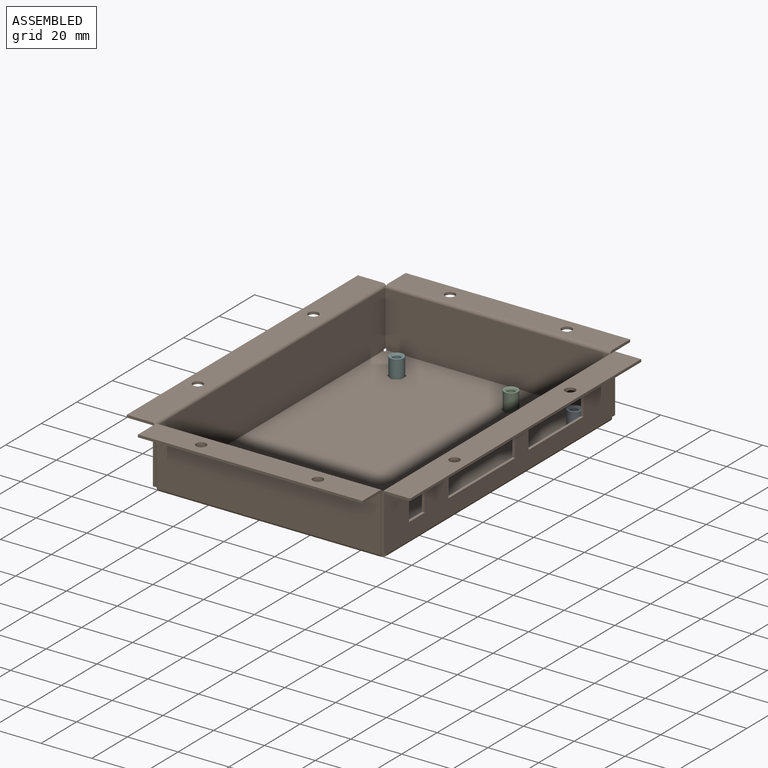
[diagram: assembled view]
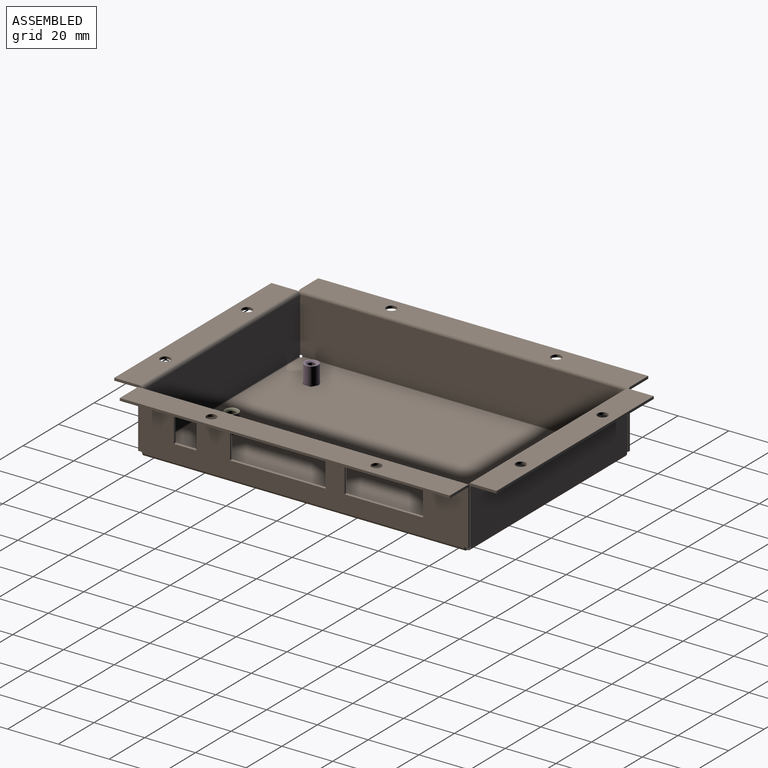
[diagram: assembled view, second angle]
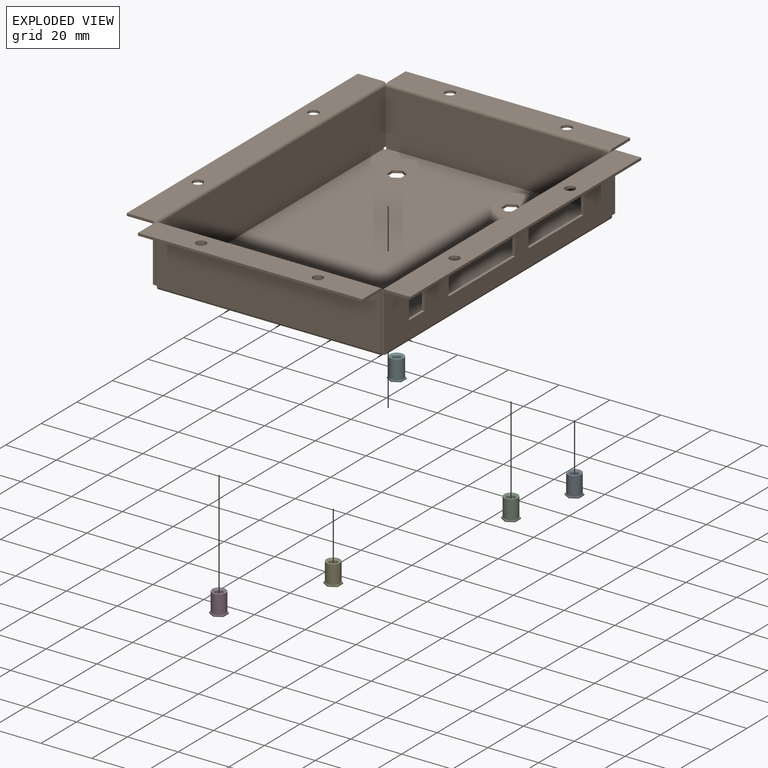
[diagram: exploded view]
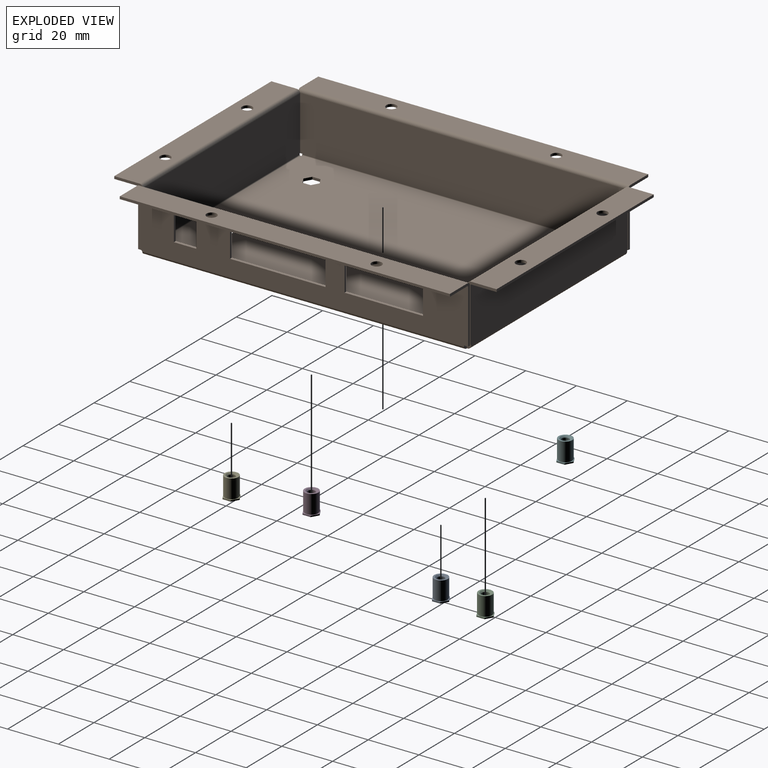
[diagram: exploded view, second angle]
ASSEMBLY  parts=6 mates=5
PART A: 15 faces, bbox 5.5x6.4x8 mm
  f0: plane 2.77x1.6mm, normal (0.5,-0.87,0), area 1.6mm2, adj f1,f5,f6,f7
  f1: plane 3.2x0.5mm, normal (1,0,0), area 1.6mm2, adj f0,f2,f6,f7
  f2: plane 2.77x1.6mm, normal (0.5,0.87,0), area 1.6mm2, adj f1,f3,f6,f7
  f3: plane 2.77x1.6mm, normal (-0.5,0.87,0), area 1.6mm2, adj f2,f4,f6,f7
  f4: plane 3.2x0.5mm, normal (-1,0,0), area 1.6mm2, adj f3,f5,f6,f7
  f5: plane 2.77x1.6mm, normal (-0.5,-0.87,0), area 1.6mm2, adj f0,f4,f6,f7
  f6: plane 6.4x5.54mm, normal (0,0,1), area 7mm2, adj f0,f1,f2,f3,f4,f5,f8
  f7: plane 6.4x5.54mm, normal (0,0,-1), area 26.6mm2, adj f0,f1,f2,f3,f4,f5
  f8: cylinder r=2.5mm len=5mm, axis (0,0,-1), area 4.7mm2, adj f6,f11
  f9: cylinder r=2.69mm len=7.2mm, axis (0,0,-1), area 121.9mm2, adj f10,f11
  f10: plane 5.39x5.39mm, normal (0,0,1), area 10.3mm2, adj f9,f14
  f11: plane 5.39x5.39mm, normal (0,0,-1), area 3.2mm2, adj f8,f9
  f12: cone r=0mm half-angle=59deg, axis (0,0,1), area 8.2mm2, adj f13
  f13: cylinder r=1.5mm len=4.9mm, axis (0,0,1), area 46.2mm2, adj f12,f14
  f14: cone r=1.5mm half-angle=45deg, axis (0,0,1), area 7.8mm2, adj f10,f13
PART B: 144 faces, bbox 111.6x150.6x24.3 mm
  f0: plane 127.4x88.4mm, normal (0,0,1), area 11128.8mm2, adj f2,f3,f4,f5,f6,f7,f8,f9
  f1: plane 127.4x88.4mm, normal (0,0,-1), area 11128.8mm2, adj f2,f3,f4,f5,f6,f7,f8,f9
  f2: plane 3.2x1mm, normal (-1,0,0), area 3.2mm2, adj f0,f1,f3,f31
  f3: plane 2.77x1.6mm, normal (-0.5,0.87,0), area 3.2mm2, adj f0,f1,f2,f4
  f4: plane 2.77x1.6mm, normal (0.5,0.87,0), area 3.2mm2, adj f0,f1,f3,f5
  f5: plane 3.2x1mm, normal (1,0,0), area 3.2mm2, adj f0,f1,f4,f6
  f6: plane 2.77x1.6mm, normal (0.5,-0.87,0), area 3.2mm2, adj f0,f1,f5,f31
  f7: plane 3.2x1mm, normal (-1,0,0), area 3.2mm2, adj f0,f1,f8,f30
  f8: plane 2.77x1.6mm, normal (-0.5,0.87,0), area 3.2mm2, adj f0,f1,f7,f9
  f9: plane 2.77x1.6mm, normal (0.5,0.87,0), area 3.2mm2, adj f0,f1,f8,f10
  f10: plane 3.2x1mm, normal (1,0,0), area 3.2mm2, adj f0,f1,f9,f11
  f11: plane 2.77x1.6mm, normal (0.5,-0.87,0), area 3.2mm2, adj f0,f1,f10,f30
  f12: plane 3.2x1mm, normal (1,0,0), area 3.2mm2, adj f0,f1,f13,f29
  f13: plane 2.77x1.6mm, normal (0.5,-0.87,0), area 3.2mm2, adj f0,f1,f12,f14
  f14: plane 2.77x1.6mm, normal (-0.5,-0.87,0), area 3.2mm2, adj f0,f1,f13,f15
  f15: plane 3.2x1mm, normal (-1,0,0), area 3.2mm2, adj f0,f1,f14,f16
  f16: plane 2.77x1.6mm, normal (-0.5,0.87,0), area 3.2mm2, adj f0,f1,f15,f29
  f17: plane 2.77x1.6mm, normal (0.5,0.87,0), area 3.2mm2, adj f0,f1,f18,f28
  f18: plane 3.2x1mm, normal (1,0,0), area 3.2mm2, adj f0,f1,f17,f19
  f19: plane 2.77x1.6mm, normal (0.5,-0.87,0), area 3.2mm2, adj f0,f1,f18,f20
  f20: plane 2.77x1.6mm, normal (-0.5,-0.87,0), area 3.2mm2, adj f0,f1,f19,f21
  f21: plane 3.2x1mm, normal (-1,0,0), area 3.2mm2, adj f0,f1,f20,f28
  f22: plane 2.77x1.6mm, normal (-0.5,-0.87,0), area 3.2mm2, adj f0,f1,f23,f27
  f23: plane 3.2x1mm, normal (-1,0,0), area 3.2mm2, adj f0,f1,f22,f24
  f24: plane 2.77x1.6mm, normal (-0.5,0.87,0), area 3.2mm2, adj f0,f1,f23,f25
  f25: plane 2.77x1.6mm, normal (0.5,0.87,0), area 3.2mm2, adj f0,f1,f24,f26
  f26: plane 3.2x1mm, normal (1,0,0), area 3.2mm2, adj f0,f1,f25,f27
  f27: plane 2.77x1.6mm, normal (0.5,-0.87,0), area 3.2mm2, adj f0,f1,f22,f26
  f28: plane 2.77x1.6mm, normal (-0.5,0.87,0), area 3.2mm2, adj f0,f1,f17,f21
  f29: plane 2.77x1.6mm, normal (0.5,0.87,0), area 3.2mm2, adj f0,f1,f12,f16
  f30: plane 2.77x1.6mm, normal (-0.5,-0.87,0), area 3.2mm2, adj f0,f1,f7,f11
  f31: plane 2.77x1.6mm, normal (-0.5,-0.87,0), area 3.2mm2, adj f0,f1,f2,f6
  f32: plane 1x0.29mm, normal (0,1,0), area 0.3mm2, adj f0,f1,f33,f71
  f33: plane 1x0.33mm, normal (1,0,0), area 0.3mm2, adj f0,f1,f32,f141
  f34: plane 1x0.33mm, normal (-1,0,0), area 0.3mm2, adj f0,f1,f35,f140
  f35: plane 1x0.29mm, normal (0,1,0), area 0.3mm2, adj f0,f1,f34,f94
  f36: plane 1x0.29mm, normal (0,-1,0), area 0.3mm2, adj f0,f1,f37,f95
  f37: plane 1x0.33mm, normal (-1,0,0), area 0.3mm2, adj f0,f1,f36,f118
  f38: plane 1x0.33mm, normal (1,0,0), area 0.3mm2, adj f0,f1,f39,f117
  f39: plane 1x0.29mm, normal (0,-1,0), area 0.3mm2, adj f0,f1,f38,f72
  f40: plane 21.41x1mm, normal (0,1,0), area 21.4mm2, adj f42,f43,f59,f68
  f41: plane 21.41x1mm, normal (0,-1,0), area 21.4mm2, adj f42,f43,f56,f67
  f42: plane 130x21.7mm, normal (-1,0,0), area 1974mm2, adj f40,f41,f44,f45,f46,f47,f48,f49
  f43: plane 130x21.7mm, normal (1,0,0), area 1974mm2, adj f40,f41,f44,f45,f46,f47,f48,f49
  f44: plane 10.8x1mm, normal (0,-1,0), area 10.8mm2, adj f42,f43,f45,f55
  f45: plane 8.8x1mm, normal (0,0,-1), area 8.8mm2, adj f42,f43,f44,f46
  f46: plane 10.8x1mm, normal (0,1,0), area 10.8mm2, adj f42,f43,f45,f55
  f47: plane 9.7x1mm, normal (0,1,0), area 9.7mm2, adj f42,f43,f48,f54
  f48: plane 37.6x1mm, normal (0,0,1), area 37.6mm2, adj f42,f43,f47,f49
  f49: plane 9.7x1mm, normal (0,-1,0), area 9.7mm2, adj f42,f43,f48,f54
  f50: plane 12.5x1mm, normal (0,1,0), area 12.5mm2, adj f42,f43,f51,f53
  f51: plane 30.9x1mm, normal (0,0,1), area 30.9mm2, adj f42,f43,f50,f52
  f52: plane 12.5x1mm, normal (0,-1,0), area 12.5mm2, adj f42,f43,f51,f53
  f53: plane 30.9x1mm, normal (0,0,-1), area 30.9mm2, adj f42,f43,f50,f52
  f54: plane 37.6x1mm, normal (0,0,-1), area 37.6mm2, adj f42,f43,f47,f49
  f55: plane 8.8x1mm, normal (0,0,1), area 8.8mm2, adj f42,f43,f44,f46
  f56: plane 1.63x1mm, normal (0,0,-1), area 1.6mm2, adj f41,f42,f43,f57
  f57: plane 1x0.29mm, normal (0,-1,0), area 0.3mm2, adj f42,f43,f56,f72
  f58: plane 1x0.29mm, normal (0,1,0), area 0.3mm2, adj f42,f43,f59,f71
  f59: plane 1.63x1mm, normal (0,0,-1), area 1.6mm2, adj f40,f42,f43,f58
  f60: plane 10x1mm, normal (0,1,0), area 10mm2, adj f64,f65,f66,f68
  f61: plane 10x1mm, normal (0,-1,0), area 10mm2, adj f64,f65,f66,f67
  f62: cylinder r=2mm len=4mm, axis (0,0,1), area 12.6mm2, adj f65,f66
  f63: cylinder r=2mm len=4mm, axis (0,0,1), area 12.6mm2, adj f65,f66
  f64: plane 130x1mm, normal (1,0,0), area 130mm2, adj f60,f61,f65,f66
  f65: plane 130x10mm, normal (0,0,1), area 1274.9mm2, adj f60,f61,f62,f63,f64,f69
  f66: plane 130x10mm, normal (0,0,-1), area 1274.9mm2, adj f60,f61,f62,f63,f64,f70
  f67: plane 1.3x1.3mm, normal (0,-1,0), area 1.3mm2, adj f41,f61,f69,f70
  f68: plane 1.3x1.3mm, normal (0,1,0), area 1.3mm2, adj f40,f60,f69,f70
  f69: cylinder r=1.3mm len=130mm, axis (0,-1,0), area 265.5mm2, adj f42,f65,f67,f68
  f70: cylinder r=0.3mm len=130mm, axis (0,-1,0), area 61.3mm2, adj f43,f66,f67,f68
  f71: plane 1.3x1.3mm, normal (0,1,0), area 1.3mm2, adj f32,f58,f73,f74
  f72: plane 1.3x1.3mm, normal (0,-1,0), area 1.3mm2, adj f39,f57,f73,f74
  f73: cylinder r=1.3mm len=126.75mm, axis (0,1,0), area 258.8mm2, adj f1,f43,f71,f72
  f74: cylinder r=0.3mm len=126.75mm, axis (0,1,0), area 59.7mm2, adj f0,f42,f71,f72
  f75: plane 21.41x1mm, normal (0,1,0), area 21.4mm2, adj f77,f78,f79,f91
  f76: plane 21.41x1mm, normal (0,-1,0), area 21.4mm2, adj f77,f78,f82,f90
  f77: plane 130x21.7mm, normal (1,0,0), area 2820mm2, adj f75,f76,f79,f80,f81,f82,f92,f97
  f78: plane 130x21.7mm, normal (-1,0,0), area 2820mm2, adj f75,f76,f79,f80,f81,f82,f93,f96
  f79: plane 1.63x1mm, normal (0,0,-1), area 1.6mm2, adj f75,f77,f78,f80
  f80: plane 1x0.29mm, normal (0,1,0), area 0.3mm2, adj f77,f78,f79,f94
  f81: plane 1x0.29mm, normal (0,-1,0), area 0.3mm2, adj f77,f78,f82,f95
  f82: plane 1.63x1mm, normal (0,0,-1), area 1.6mm2, adj f76,f77,f78,f81
  f83: plane 10x1mm, normal (0,-1,0), area 10mm2, adj f87,f88,f89,f90
  f84: plane 10x1mm, normal (0,1,0), area 10mm2, adj f87,f88,f89,f91
  f85: cylinder r=2mm len=4mm, axis (0,0,1), area 12.6mm2, adj f88,f89
  f86: cylinder r=2mm len=4mm, axis (0,0,1), area 12.6mm2, adj f88,f89
  f87: plane 130x1mm, normal (-1,0,0), area 130mm2, adj f83,f84,f88,f89
  f88: plane 130x10mm, normal (0,0,1), area 1274.9mm2, adj f83,f84,f85,f86,f87,f92
  f89: plane 130x10mm, normal (0,0,-1), area 1274.9mm2, adj f83,f84,f85,f86,f87,f93
  f90: plane 1.3x1.3mm, normal (0,-1,0), area 1.3mm2, adj f76,f83,f92,f93
  f91: plane 1.3x1.3mm, normal (0,1,0), area 1.3mm2, adj f75,f84,f92,f93
  f92: cylinder r=1.3mm len=130mm, axis (0,-1,0), area 265.5mm2, adj f77,f88,f90,f91
  f93: cylinder r=0.3mm len=130mm, axis (0,-1,0), area 61.3mm2, adj f78,f89,f90,f91
  f94: plane 1.3x1.3mm, normal (0,1,0), area 1.3mm2, adj f35,f80,f96,f97
  f95: plane 1.3x1.3mm, normal (0,-1,0), area 1.3mm2, adj f36,f81,f96,f97
  f96: cylinder r=1.3mm len=126.75mm, axis (0,1,0), area 258.8mm2, adj f1,f78,f94,f95
  f97: cylinder r=0.3mm len=126.75mm, axis (0,1,0), area 59.7mm2, adj f0,f77,f94,f95
  f98: plane 21.25x1mm, normal (1,0,0), area 21.3mm2, adj f100,f101,f105,f114
  f99: plane 21.25x1mm, normal (-1,0,0), area 21.3mm2, adj f100,f101,f102,f113
  f100: plane 88.4x21.7mm, normal (0,1,0), area 1918mm2, adj f98,f99,f102,f103,f104,f105,f115,f120
  f101: plane 88.4x21.7mm, normal (0,-1,0), area 1918mm2, adj f98,f99,f102,f103,f104,f105,f116,f119
  f102: plane 1x0.29mm, normal (0,0,-1), area 0.3mm2, adj f99,f100,f101,f103
  f103: plane 1x0.45mm, normal (-1,0,0), area 0.4mm2, adj f100,f101,f102,f118
  f104: plane 1x0.45mm, normal (1,0,0), area 0.4mm2, adj f100,f101,f105,f117
  f105: plane 1x0.29mm, normal (0,0,-1), area 0.3mm2, adj f98,f100,f101,f104
  f106: plane 10x1mm, normal (1,0,0), area 10mm2, adj f110,f111,f112,f114
  f107: plane 10x1mm, normal (-1,0,0), area 10mm2, adj f110,f111,f112,f113
  f108: cylinder r=2mm len=4mm, axis (0,0,1), area 12.6mm2, adj f111,f112
  f109: cylinder r=2mm len=4mm, axis (0,0,1), area 12.6mm2, adj f111,f112
  f110: plane 88.4x1mm, normal (0,-1,0), area 88.4mm2, adj f106,f107,f111,f112
  f111: plane 88.4x10mm, normal (0,0,1), area 858.9mm2, adj f106,f107,f108,f109,f110,f115
  f112: plane 88.4x10mm, normal (0,0,-1), area 858.9mm2, adj f106,f107,f108,f109,f110,f116
  f113: plane 1.3x1.3mm, normal (-1,0,0), area 1.3mm2, adj f99,f107,f115,f116
  f114: plane 1.3x1.3mm, normal (1,0,0), area 1.3mm2, adj f98,f106,f115,f116
  f115: cylinder r=1.3mm len=88.4mm, axis (-1,0,0), area 180.5mm2, adj f100,f111,f113,f114
  f116: cylinder r=0.3mm len=88.4mm, axis (-1,0,0), area 41.7mm2, adj f101,f112,f113,f114
  f117: plane 1.3x1.3mm, normal (1,0,0), area 1.3mm2, adj f38,f104,f119,f120
  f118: plane 1.3x1.3mm, normal (-1,0,0), area 1.3mm2, adj f37,f103,f119,f120
  f119: cylinder r=1.3mm len=87.81mm, axis (1,0,0), area 179.3mm2, adj f1,f101,f117,f118
  f120: cylinder r=0.3mm len=87.81mm, axis (1,0,0), area 41.4mm2, adj f0,f100,f117,f118
  f121: plane 21.25x1mm, normal (-1,0,0), area 21.3mm2, adj f123,f124,f128,f137
  f122: plane 21.25x1mm, normal (1,0,0), area 21.3mm2, adj f123,f124,f125,f136
  f123: plane 88.4x21.7mm, normal (0,-1,0), area 1918mm2, adj f121,f122,f125,f126,f127,f128,f138,f143
  f124: plane 88.4x21.7mm, normal (0,1,0), area 1918mm2, adj f121,f122,f125,f126,f127,f128,f139,f142
  f125: plane 1x0.29mm, normal (0,0,-1), area 0.3mm2, adj f122,f123,f124,f126
  f126: plane 1x0.45mm, normal (1,0,0), area 0.4mm2, adj f123,f124,f125,f141
  f127: plane 1x0.45mm, normal (-1,0,0), area 0.4mm2, adj f123,f124,f128,f140
  f128: plane 1x0.29mm, normal (0,0,-1), area 0.3mm2, adj f121,f123,f124,f127
  f129: plane 10x1mm, normal (-1,0,0), area 10mm2, adj f133,f134,f135,f137
  f130: plane 10x1mm, normal (1,0,0), area 10mm2, adj f133,f134,f135,f136
  f131: cylinder r=2mm len=4mm, axis (0,0,1), area 12.6mm2, adj f134,f135
  f132: cylinder r=2mm len=4mm, axis (0,0,1), area 12.6mm2, adj f134,f135
  f133: plane 88.4x1mm, normal (0,1,0), area 88.4mm2, adj f129,f130,f134,f135
  f134: plane 88.4x10mm, normal (0,0,1), area 858.9mm2, adj f129,f130,f131,f132,f133,f138
  f135: plane 88.4x10mm, normal (0,0,-1), area 858.9mm2, adj f129,f130,f131,f132,f133,f139
  f136: plane 1.3x1.3mm, normal (1,0,0), area 1.3mm2, adj f122,f130,f138,f139
  f137: plane 1.3x1.3mm, normal (-1,0,0), area 1.3mm2, adj f121,f129,f138,f139
  f138: cylinder r=1.3mm len=88.4mm, axis (1,0,0), area 180.5mm2, adj f123,f134,f136,f137
  f139: cylinder r=0.3mm len=88.4mm, axis (1,0,0), area 41.7mm2, adj f124,f135,f136,f137
  f140: plane 1.3x1.3mm, normal (-1,0,0), area 1.3mm2, adj f34,f127,f142,f143
  f141: plane 1.3x1.3mm, normal (1,0,0), area 1.3mm2, adj f33,f126,f142,f143
  f142: cylinder r=1.3mm len=87.81mm, axis (-1,0,0), area 179.3mm2, adj f1,f124,f140,f141
  f143: cylinder r=0.3mm len=87.81mm, axis (-1,0,0), area 41.4mm2, adj f0,f123,f140,f141
PART C: same geometry as A
PART D: same geometry as A
PART E: same geometry as A
PART F: same geometry as A
PLACE A t=(43.62,49.21,-17.09)mm
PLACE B t=(3.82,-1.09,-17.09)mm
PLACE C t=(18.62,49.21,-17.09)mm
PLACE D t=(-26.38,-50.79,-17.09)mm
PLACE E t=(18.62,-50.79,-17.09)mm
PLACE F t=(-26.38,49.21,-17.09)mm
MATE fastened F.f7 <-> B.f1  axis (0,0,-1) through (-26.38,46.01,-17.09)mm
MATE fastened A.f7 <-> B.f1  axis (0,0,-1) through (43.62,46.01,-17.09)mm
MATE fastened E.f7 <-> B.f1  axis (0,0,-1) through (18.62,-53.99,-17.09)mm
MATE fastened D.f7 <-> B.f1  axis (0,0,-1) through (-26.38,-53.99,-17.09)mm
MATE fastened C.f7 <-> B.f1  axis (0,0,-1) through (18.62,46.01,-17.09)mm
